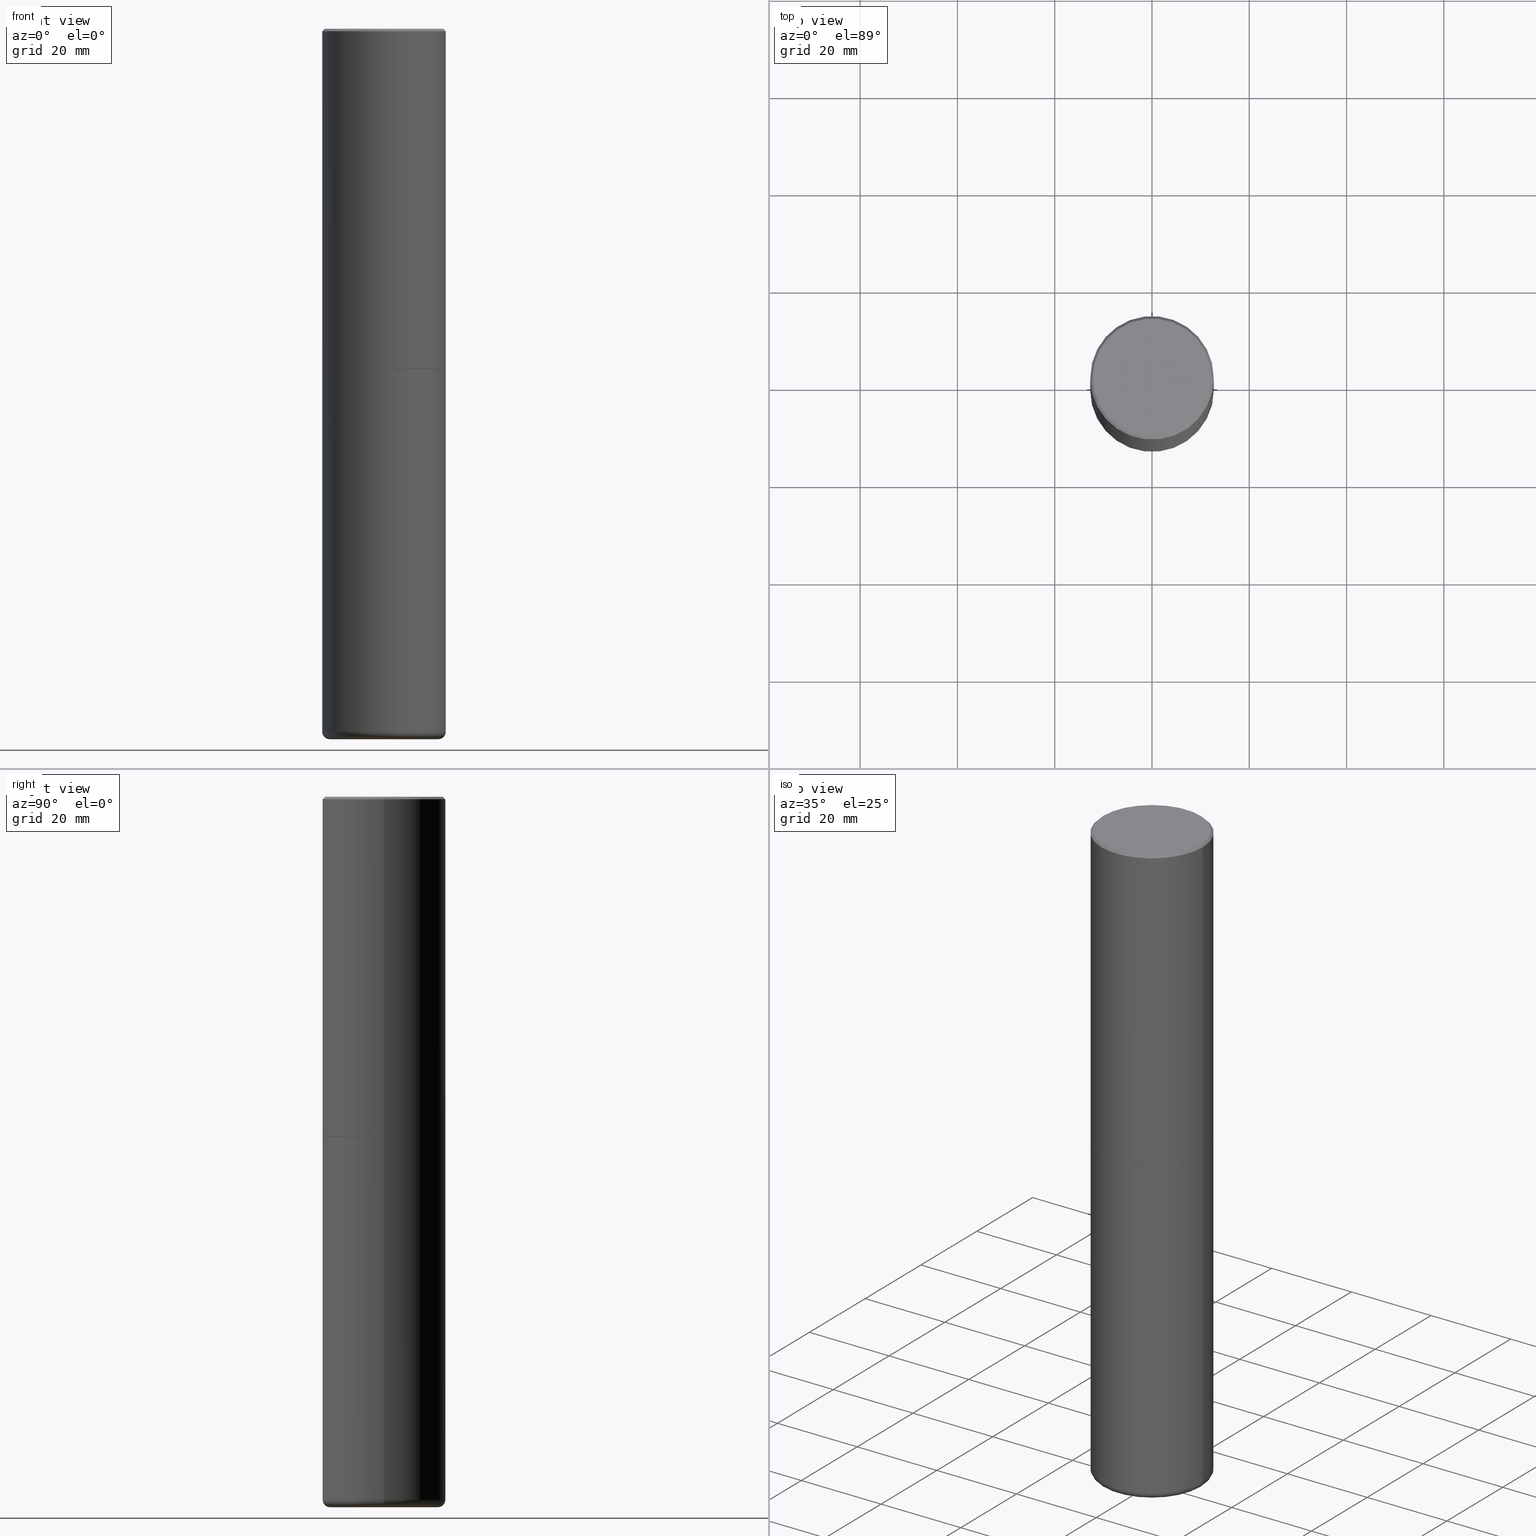
[diagram: canonical four-view strip — front | top / right | iso, engineering-drawing reading convention]
A machine part, canonical four-view strip (front | top / right | iso — engineering-drawing reading convention). The complete STEP part file that produces these views, byte-faithful:
ISO-10303-21;
HEADER;
FILE_DESCRIPTION (( 'STEP AP203' ),
    '1' );
FILE_NAME ('77486.STEP',
    '2024-05-02T19:48:48',
    ( '' ),
    ( '' ),
    'SwSTEP 2.0',
    'SolidWorks 2023',
    '' );
FILE_SCHEMA (( 'CONFIG_CONTROL_DESIGN' ));
ENDSEC;

DATA;
#1 = CC_DESIGN_APPROVAL ( #347, ( #179 ) ) ;
#2 = ORIENTED_EDGE ( 'NONE', *, *, #239, .F. ) ;
#3 = EDGE_CURVE ( 'NONE', #213, #237, #161, .T. ) ;
#4 = CARTESIAN_POINT ( 'NONE',  ( 0.4989999999999999991, -1.308607205798409720E-14, -2.749999999999999556 ) ) ;
#5 = APPROVAL_ROLE ( '' ) ;
#6 = LINE ( 'NONE', #322, #305 ) ;
#7 = ORIENTED_EDGE ( 'NONE', *, *, #52, .T. ) ;
#8 = AXIS2_PLACEMENT_3D ( 'NONE', #28, #222, #153 ) ;
#9 = SECURITY_CLASSIFICATION ( '', '', #110 ) ;
#10 = LENGTH_MEASURE_WITH_UNIT ( LENGTH_MEASURE( 0.02539999999999999897 ), #80 );
#11 = EDGE_LOOP ( 'NONE', ( #374, #167, #74, #292 ) ) ;
#12 = PERSON_AND_ORGANIZATION ( #44, #391 ) ;
#13 = FACE_OUTER_BOUND ( 'NONE', #136, .T. ) ;
#14 = ORIENTED_EDGE ( 'NONE', *, *, #195, .F. ) ;
#15 = ADVANCED_FACE ( 'NONE', ( #148 ), #366, .T. ) ;
#16 = DIRECTION ( 'NONE',  ( 2.445468806185136597E-29, -3.491481338843145583E-15, -1.000000000000000000 ) ) ;
#17 = AXIS2_PLACEMENT_3D ( 'NONE', #340, #346, #277 ) ;
#18 = EDGE_LOOP ( 'NONE', ( #320, #403 ) ) ;
#19 = LOCAL_TIME ( 15, 48, 48.00000000000000000, #105 ) ;
#20 = MANIFOLD_SOLID_BREP ( 'Body-Move/Copy2[1]', #45 ) ;
#21 = MANIFOLD_SOLID_BREP ( 'Body-Move/Copy2[2]', #280 ) ;
#22 = EDGE_CURVE ( 'NONE', #87, #220, #389, .T. ) ;
#23 = DIRECTION ( 'NONE',  ( 1.000000000000000000, -6.982962677686266711E-15, 4.874852205035275907E-29 ) ) ;
#24 = CARTESIAN_POINT ( 'NONE',  ( 0.5000000000000003331, -1.308956353932294179E-14, -2.748999999999999666 ) ) ;
#25 = ORIENTED_EDGE ( 'NONE', *, *, #375, .F. ) ;
#26 = CIRCLE ( 'NONE', #287, 0.5000000000000000000 ) ;
#27 =( GEOMETRIC_REPRESENTATION_CONTEXT ( 3 ) GLOBAL_UNCERTAINTY_ASSIGNED_CONTEXT ( ( #308 ) ) GLOBAL_UNIT_ASSIGNED_CONTEXT ( ( #236, #352, #160 ) ) REPRESENTATION_CONTEXT ( 'NONE', 'WORKASPACE' ) );
#28 = CARTESIAN_POINT ( 'NONE',  ( 6.725039217009123399E-29, -9.601573681818648281E-15, -2.749999999999999556 ) ) ;
#29 = LINE ( 'NONE', #154, #212 ) ;
#30 = DIRECTION ( 'NONE',  ( -0.7071067811867406405, 7.493145998871051513E-15, 0.7071067811863543939 ) ) ;
#31 = AXIS2_PLACEMENT_3D ( 'NONE', #127, #185, #317 ) ;
#32 = CIRCLE ( 'NONE', #381, 0.5000000000000000000 ) ;
#33 = FACE_OUTER_BOUND ( 'NONE', #384, .T. ) ;
#34 = CARTESIAN_POINT ( 'NONE',  ( 0.4800000000000000933, -3.396558832296482493E-15, -1.067128122524866809E-16 ) ) ;
#35 = EDGE_CURVE ( 'NONE', #130, #263, #370, .T. ) ;
#36 = CARTESIAN_POINT ( 'NONE',  ( 1.406144563556453767E-28, -2.007601769834809252E-14, -5.750000000000000888 ) ) ;
#37 = PRODUCT_RELATED_PRODUCT_CATEGORY ( 'detail', '', ( #354 ) ) ;
#38 = VECTOR ( 'NONE', #187, 39.37007874015748143 ) ;
#39 = ORIENTED_EDGE ( 'NONE', *, *, #271, .F. ) ;
#40 = PERSON_AND_ORGANIZATION ( #44, #391 ) ;
#41 = DIRECTION ( 'NONE',  ( -2.445468806185136597E-29, 3.491481338843145583E-15, 1.000000000000000000 ) ) ;
#42 = EDGE_LOOP ( 'NONE', ( #227, #368 ) ) ;
#43 = DIRECTION ( 'NONE',  ( 1.000000000000000000, -6.982962677686262766E-15, 0.000000000000000000 ) ) ;
#44 = PERSON ( 'UNSPECIFIED', 'UNSPECIFIED', 'UNSPECIFIED', ('UNSPECIFIED'), ('UNSPECIFIED'), ('UNSPECIFIED') ) ;
#45 = CLOSED_SHELL ( 'NONE', ( #84, #94, #159, #402, #417, #15 ) ) ;
#46 = DIRECTION ( 'NONE',  ( -2.445468806185136597E-29, 3.491481338843145583E-15, 1.000000000000000000 ) ) ;
#47 = CC_DESIGN_PERSON_AND_ORGANIZATION_ASSIGNMENT ( #202, #100, ( #179 ) ) ;
#48 = ORIENTED_EDGE ( 'NONE', *, *, #404, .T. ) ;
#49 = DIRECTION ( 'NONE',  ( 0.000000000000000000, 0.000000000000000000, 1.000000000000000000 ) ) ;
#50 = VERTEX_POINT ( 'NONE', #57 ) ;
#51 = FACE_OUTER_BOUND ( 'NONE', #77, .T. ) ;
#52 = EDGE_CURVE ( 'NONE', #130, #86, #400, .T. ) ;
#53 = CIRCLE ( 'NONE', #178, 0.4999999999999999445 ) ;
#54 = DIRECTION ( 'NONE',  ( -2.445468806185136597E-29, 3.491481338843145583E-15, 1.000000000000000000 ) ) ;
#55 = APPROVAL_PERSON_ORGANIZATION ( #40, #144, #388 ) ;
#56 = ORIENTED_EDGE ( 'NONE', *, *, #375, .T. ) ;
#57 = CARTESIAN_POINT ( 'NONE',  ( -0.4989999999999999991, -6.050666976027525169E-15, -2.749999999999999556 ) ) ;
#58 = ORIENTED_EDGE ( 'NONE', *, *, #363, .F. ) ;
#59 = APPROVAL_PERSON_ORGANIZATION ( #75, #119, #139 ) ;
#60 = DIRECTION ( 'NONE',  ( 1.000000000000000000, -6.982962677686280121E-15, 0.000000000000000000 ) ) ;
#61 = FACE_OUTER_BOUND ( 'NONE', #304, .T. ) ;
#62 = EDGE_CURVE ( 'NONE', #116, #50, #328, .T. ) ;
#63 = DIMENSIONAL_EXPONENTS ( 1.000000000000000000, 0.000000000000000000, 0.000000000000000000, 0.000000000000000000, 0.000000000000000000, 0.000000000000000000, 0.000000000000000000 ) ;
#64 = CARTESIAN_POINT ( 'NONE',  ( 1.391471750719342616E-28, -1.986652881801749632E-14, -5.689999999999999503 ) ) ;
#65 = AXIS2_PLACEMENT_3D ( 'NONE', #247, #269, #215 ) ;
#66 = CARTESIAN_POINT ( 'NONE',  ( 0.4400000000000000022, -2.293903239619945620E-14, -5.689999999999999503 ) ) ;
#67 = CARTESIAN_POINT ( 'NONE',  ( 6.725039217009123399E-29, -9.601573681818648281E-15, -2.749999999999999556 ) ) ;
#68 = ADVANCED_FACE ( 'NONE', ( #181 ), #128, .T. ) ;
#69 = CALENDAR_DATE ( 2024, 2, 5 ) ;
#70 = DIRECTION ( 'NONE',  ( -2.445468806185136597E-29, 3.491481338843145583E-15, 1.000000000000000000 ) ) ;
#71 = EDGE_LOOP ( 'NONE', ( #102, #7, #258, #25 ) ) ;
#72 = AXIS2_PLACEMENT_3D ( 'NONE', #120, #149, #245 ) ;
#73 = CYLINDRICAL_SURFACE ( 'NONE', #275, 0.5000000000000001110 ) ;
#74 = ORIENTED_EDGE ( 'NONE', *, *, #214, .T. ) ;
#75 = PERSON_AND_ORGANIZATION ( #44, #391 ) ;
#76 = CYLINDRICAL_SURFACE ( 'NONE', #319, 0.5000000000000000000 ) ;
#77 = EDGE_LOOP ( 'NONE', ( #208, #107, #14, #241 ) ) ;
#78 = CC_DESIGN_DATE_AND_TIME_ASSIGNMENT ( #290, #385, ( #9 ) ) ;
#79 = PERSON_AND_ORGANIZATION ( #44, #391 ) ;
#80 =( LENGTH_UNIT ( ) NAMED_UNIT ( * ) SI_UNIT ( $, .METRE. ) );
#81 = EDGE_LOOP ( 'NONE', ( #201, #175, #298, #406 ) ) ;
#82 = EDGE_CURVE ( 'NONE', #83, #263, #218, .T. ) ;
#83 = VERTEX_POINT ( 'NONE', #307 ) ;
#84 = ADVANCED_FACE ( 'NONE', ( #401 ), #306, .T. ) ;
#85 = DIRECTION ( 'NONE',  ( -2.445468806185136597E-29, 3.491481338843145583E-15, 1.000000000000000000 ) ) ;
#86 = VERTEX_POINT ( 'NONE', #24 ) ;
#87 = VERTEX_POINT ( 'NONE', #217 ) ;
#88 = DIRECTION ( 'NONE',  ( -2.445468806185136597E-29, 3.491481338843145583E-15, 1.000000000000000000 ) ) ;
#89 = ADVANCED_FACE ( 'NONE', ( #338 ), #146, .F. ) ;
#90 = CARTESIAN_POINT ( 'NONE',  ( 6.725039217009123399E-29, -9.601573681818648281E-15, -2.749999999999999556 ) ) ;
#91 = DIRECTION ( 'NONE',  ( -1.000000000000000000, 7.105427357601001859E-15, 0.000000000000000000 ) ) ;
#92 = VECTOR ( 'NONE', #125, 39.37007874015748143 ) ;
#93 = LINE ( 'NONE', #188, #243 ) ;
#94 = ADVANCED_FACE ( 'NONE', ( #51 ), #351, .T. ) ;
#95 = DIRECTION ( 'NONE',  ( 1.000000000000000000, -6.982962677686266711E-15, 0.000000000000000000 ) ) ;
#96 = FACE_OUTER_BOUND ( 'NONE', #81, .T. ) ;
#97 = CIRCLE ( 'NONE', #205, 0.4400000000000000022 ) ;
#98 = DIRECTION ( 'NONE',  ( 2.438088387897960049E-29, -3.491481338843145188E-15, -1.000000000000000000 ) ) ;
#99 = VERTEX_POINT ( 'NONE', #224 ) ;
#100 = PERSON_AND_ORGANIZATION_ROLE ( 'design_supplier' ) ;
#101 = DIRECTION ( 'NONE',  ( 1.000000000000000000, -6.982962677686264344E-15, 4.883557194083111780E-29 ) ) ;
#102 = ORIENTED_EDGE ( 'NONE', *, *, #35, .F. ) ;
#103 = AXIS2_PLACEMENT_3D ( 'NONE', #90, #54, #336 ) ;
#104 = CC_DESIGN_SECURITY_CLASSIFICATION ( #9, ( #179 ) ) ;
#105 = COORDINATED_UNIVERSAL_TIME_OFFSET ( 5, 0, .BEHIND. ) ;
#106 = CARTESIAN_POINT ( 'NONE',  ( 0.000000000000000000, 0.000000000000000000, 0.000000000000000000 ) ) ;
#107 = ORIENTED_EDGE ( 'NONE', *, *, #210, .T. ) ;
#108 = DIRECTION ( 'NONE',  ( 1.000000000000000000, -6.982962677686266711E-15, 4.876176775795935793E-29 ) ) ;
#109 = VERTEX_POINT ( 'NONE', #382 ) ;
#110 = SECURITY_CLASSIFICATION_LEVEL ( 'unclassified' ) ;
#111 = ORIENTED_EDGE ( 'NONE', *, *, #35, .T. ) ;
#112 = DATE_AND_TIME ( #324, #124 ) ;
#113 = ADVANCED_FACE ( 'NONE', ( #344 ), #348, .F. ) ;
#114 = CARTESIAN_POINT ( 'NONE',  ( 3.351822085289408337E-15, 0.4800000000000000933, -1.729267448770965221E-15 ) ) ;
#115 = EDGE_LOOP ( 'NONE', ( #143, #405, #367, #141 ) ) ;
#116 = VERTEX_POINT ( 'NONE', #158 ) ;
#117 = CONICAL_SURFACE ( 'NONE', #8, 0.4989999999999999991, 0.7853981633977213939 ) ;
#118 = DIRECTION ( 'NONE',  ( 2.438088387897960049E-29, -3.491481338843145188E-15, -1.000000000000000000 ) ) ;
#119 = APPROVAL ( #145, 'UNSPECIFIED' ) ;
#120 = CARTESIAN_POINT ( 'NONE',  ( 1.391471750719342616E-28, -1.986652881801749632E-14, -5.689999999999999503 ) ) ;
#121 = DIRECTION ( 'NONE',  ( -2.445468806185136597E-29, 3.491481338843145583E-15, 1.000000000000000000 ) ) ;
#122 = DIRECTION ( 'NONE',  ( -2.445468806185136597E-29, 3.491481338843145583E-15, 1.000000000000000000 ) ) ;
#123 = CIRCLE ( 'NONE', #137, 0.4800000000000000933 ) ;
#124 = LOCAL_TIME ( 15, 48, 48.00000000000000000, #399 ) ;
#125 = DIRECTION ( 'NONE',  ( 0.7071067811865461294, -7.319954787623251312E-15, -0.7071067811865489050 ) ) ;
#126 = DIRECTION ( 'NONE',  ( -2.445468806185136597E-29, 3.491481338843145583E-15, 1.000000000000000000 ) ) ;
#127 = CARTESIAN_POINT ( 'NONE',  ( 6.725039217009123399E-29, -9.601573681818648281E-15, -2.749999999999999556 ) ) ;
#128 = CONICAL_SURFACE ( 'NONE', #407, 0.5000000000000000000, 0.7853981633974463916 ) ;
#129 = DIRECTION ( 'NONE',  ( -2.445468806185136597E-29, 3.491481338843145583E-15, 1.000000000000000000 ) ) ;
#130 = VERTEX_POINT ( 'NONE', #316 ) ;
#131 = EDGE_CURVE ( 'NONE', #87, #198, #256, .T. ) ;
#132 = DIRECTION ( 'NONE',  ( -2.445468806185136597E-29, 3.491481338843145583E-15, 1.000000000000000000 ) ) ;
#133 = PERSON_AND_ORGANIZATION_ROLE ( 'creator' ) ;
#134 = DIRECTION ( 'NONE',  ( -2.445468806185136597E-29, 3.491481338843145583E-15, 1.000000000000000000 ) ) ;
#135 = ADVANCED_FACE ( 'NONE', ( #33 ), #170, .T. ) ;
#136 = EDGE_LOOP ( 'NONE', ( #334, #234, #332, #39 ) ) ;
#137 = AXIS2_PLACEMENT_3D ( 'NONE', #288, #70, #397 ) ;
#138 = CC_DESIGN_APPROVAL ( #119, ( #387 ) ) ;
#139 = APPROVAL_ROLE ( '' ) ;
#140 = DIRECTION ( 'NONE',  ( 1.000000000000000000, -6.982962677686265922E-15, 0.000000000000000000 ) ) ;
#141 = ORIENTED_EDGE ( 'NONE', *, *, #286, .F. ) ;
#142 = CARTESIAN_POINT ( 'NONE',  ( 1.391471750719342616E-28, -1.986652881801749632E-14, -5.689999999999999503 ) ) ;
#143 = ORIENTED_EDGE ( 'NONE', *, *, #303, .F. ) ;
#144 = APPROVAL ( #165, 'UNSPECIFIED' ) ;
#145 = APPROVAL_STATUS ( 'not_yet_approved' ) ;
#146 = PLANE ( 'NONE',  #364 ) ;
#147 = AXIS2_PLACEMENT_3D ( 'NONE', #142, #132, #101 ) ;
#148 = FACE_OUTER_BOUND ( 'NONE', #42, .T. ) ;
#149 = DIRECTION ( 'NONE',  ( -2.445468806185136597E-29, 3.491481338843145583E-15, 1.000000000000000000 ) ) ;
#150 = CC_DESIGN_PERSON_AND_ORGANIZATION_ASSIGNMENT ( #79, #362, ( #179 ) ) ;
#151 = CARTESIAN_POINT ( 'NONE',  ( 4.089694968291764333E-29, -3.435613221068401065E-14, -5.750000000000000888 ) ) ;
#152 = DIRECTION ( 'NONE',  ( -2.445468806185136597E-29, 3.491481338843145583E-15, 1.000000000000000000 ) ) ;
#153 = DIRECTION ( 'NONE',  ( 1.000000000000000000, -6.982962677686269077E-15, 0.000000000000000000 ) ) ;
#154 = CARTESIAN_POINT ( 'NONE',  ( 0.5000000000000000000, -3.491481338843133355E-15, 2.438088387897967896E-29 ) ) ;
#155 = CARTESIAN_POINT ( 'NONE',  ( -0.5000000000000000000, 3.421651712066270057E-15, -0.02000000000000010797 ) ) ;
#156 = CONICAL_SURFACE ( 'NONE', #17, 0.4989999999999999991, 0.7853981633977213939 ) ;
#157 = FACE_OUTER_BOUND ( 'NONE', #18, .T. ) ;
#158 = CARTESIAN_POINT ( 'NONE',  ( 0.4989999999999999991, -1.308607205798409720E-14, -2.749999999999999556 ) ) ;
#159 = ADVANCED_FACE ( 'NONE', ( #157 ), #285, .F. ) ;
#160 =( NAMED_UNIT ( * ) SI_UNIT ( $, .STERADIAN. ) SOLID_ANGLE_UNIT ( ) );
#161 = CIRCLE ( 'NONE', #377, 0.4800000000000000933 ) ;
#162 = TOROIDAL_SURFACE ( 'NONE', #147, 0.4400000000000000022, 0.06000000000000045575 ) ;
#163 = ORIENTED_EDGE ( 'NONE', *, *, #254, .F. ) ;
#164 = EDGE_CURVE ( 'NONE', #350, #99, #270, .T. ) ;
#165 = APPROVAL_STATUS ( 'not_yet_approved' ) ;
#166 = DIRECTION ( 'NONE',  ( 1.000000000000000000, -6.982962677686266711E-15, 0.000000000000000000 ) ) ;
#167 = ORIENTED_EDGE ( 'NONE', *, *, #341, .T. ) ;
#168 = DIRECTION ( 'NONE',  ( -2.445468806185136597E-29, 3.491481338843145583E-15, 1.000000000000000000 ) ) ;
#169 = EDGE_LOOP ( 'NONE', ( #48, #111, #211, #361 ) ) ;
#170 = CONICAL_SURFACE ( 'NONE', #318, 0.5000000000000000000, 0.7853981633974463916 ) ;
#171 = PERSON_AND_ORGANIZATION ( #44, #391 ) ;
#172 = CARTESIAN_POINT ( 'NONE',  ( 0.000000000000000000, 0.000000000000000000, 0.000000000000000000 ) ) ;
#173 = PERSON_AND_ORGANIZATION_ROLE ( 'classification_officer' ) ;
#174 = CARTESIAN_POINT ( 'NONE',  ( 0.000000000000000000, 0.000000000000000000, 0.000000000000000000 ) ) ;
#175 = ORIENTED_EDGE ( 'NONE', *, *, #254, .T. ) ;
#176 = SHAPE_DEFINITION_REPRESENTATION ( #343, #360 ) ;
#177 = ADVANCED_FACE ( 'NONE', ( #96 ), #117, .T. ) ;
#178 = AXIS2_PLACEMENT_3D ( 'NONE', #410, #121, #253 ) ;
#179 = PRODUCT_DEFINITION_FORMATION_WITH_SPECIFIED_SOURCE ( 'ANY', '', #354, .NOT_KNOWN. ) ;
#180 = CARTESIAN_POINT ( 'NONE',  ( 4.890937612370299433E-31, -6.982962677686328587E-17, -0.02000000000000010797 ) ) ;
#181 = FACE_OUTER_BOUND ( 'NONE', #115, .T. ) ;
#182 = DIRECTION ( 'NONE',  ( -2.445468806185136877E-29, 3.491481338843145188E-15, 1.000000000000000000 ) ) ;
#183 = AXIS2_PLACEMENT_3D ( 'NONE', #151, #118, #408 ) ;
#184 = APPROVAL_PERSON_ORGANIZATION ( #12, #347, #5 ) ;
#185 = DIRECTION ( 'NONE',  ( -2.438088387897960049E-29, 3.491481338843145188E-15, 1.000000000000000000 ) ) ;
#186 = APPLICATION_CONTEXT ( 'configuration controlled 3d designs of mechanical parts and assemblies' ) ;
#187 = DIRECTION ( 'NONE',  ( -2.445468806185136877E-29, 3.491481338843145188E-15, 1.000000000000000000 ) ) ;
#188 = CARTESIAN_POINT ( 'NONE',  ( -0.4989999999999999991, -6.055965430375748360E-15, -2.749999999999999556 ) ) ;
#189 = AXIS2_PLACEMENT_3D ( 'NONE', #64, #226, #190 ) ;
#190 = DIRECTION ( 'NONE',  ( 1.000000000000000000, -6.982962677686264344E-15, 4.883557194083111780E-29 ) ) ;
#191 = ADVANCED_FACE ( 'NONE', ( #61 ), #156, .T. ) ;
#192 = DIRECTION ( 'NONE',  ( -6.982962677686266711E-15, -1.000000000000000000, 3.491481338843145583E-15 ) ) ;
#193 = CARTESIAN_POINT ( 'NONE',  ( 0.4400000000000000022, -2.314852127653004609E-14, -5.750000000000000888 ) ) ;
#194 = AXIS2_PLACEMENT_3D ( 'NONE', #415, #126, #279 ) ;
#195 = EDGE_CURVE ( 'NONE', #220, #87, #53, .T. ) ;
#196 = PERSON_AND_ORGANIZATION_ROLE ( 'design_owner' ) ;
#197 = DIRECTION ( 'NONE',  ( 1.000000000000000000, -6.982962677686266711E-15, 0.000000000000000000 ) ) ;
#198 = VERTEX_POINT ( 'NONE', #248 ) ;
#199 = CALENDAR_DATE ( 2024, 2, 5 ) ;
#200 = DIRECTION ( 'NONE',  ( -0.7071067811865461294, 2.468850131082242072E-15, -0.7071067811865489050 ) ) ;
#201 = ORIENTED_EDGE ( 'NONE', *, *, #62, .T. ) ;
#202 = PERSON_AND_ORGANIZATION ( #44, #391 ) ;
#203 = DIRECTION ( 'NONE',  ( -2.445468806185136877E-29, 3.491481338843145188E-15, 1.000000000000000000 ) ) ;
#204 = ORIENTED_EDGE ( 'NONE', *, *, #286, .T. ) ;
#205 = AXIS2_PLACEMENT_3D ( 'NONE', #36, #393, #43 ) ;
#206 = COORDINATED_UNIVERSAL_TIME_OFFSET ( 5, 0, .BEHIND. ) ;
#207 = DIRECTION ( 'NONE',  ( 1.000000000000000000, 0.000000000000000000, 0.000000000000000000 ) ) ;
#208 = ORIENTED_EDGE ( 'NONE', *, *, #164, .T. ) ;
#209 = DIRECTION ( 'NONE',  ( 2.438088387897960049E-29, -3.491481338843145188E-15, -1.000000000000000000 ) ) ;
#210 = EDGE_CURVE ( 'NONE', #99, #87, #345, .T. ) ;
#211 = ORIENTED_EDGE ( 'NONE', *, *, #82, .F. ) ;
#212 = VECTOR ( 'NONE', #411, 39.37007874015748143 ) ;
#213 = VERTEX_POINT ( 'NONE', #219 ) ;
#214 = EDGE_CURVE ( 'NONE', #350, #220, #371, .T. ) ;
#215 = DIRECTION ( 'NONE',  ( 1.000000000000000000, -6.982962677686265922E-15, 0.000000000000000000 ) ) ;
#216 = CC_DESIGN_PERSON_AND_ORGANIZATION_ASSIGNMENT ( #326, #173, ( #9 ) ) ;
#217 = CARTESIAN_POINT ( 'NONE',  ( -0.5000000000000002220, -1.631381513921699223E-14, -5.689999999999999503 ) ) ;
#218 = CIRCLE ( 'NONE', #223, 0.5000000000000000000 ) ;
#219 = CARTESIAN_POINT ( 'NONE',  ( -0.4800000000000000933, 3.386736898677839197E-15, -1.067128122525338523E-16 ) ) ;
#220 = VERTEX_POINT ( 'NONE', #313 ) ;
#221 = CARTESIAN_POINT ( 'NONE',  ( 4.890937612370299433E-31, -6.982962677686328587E-17, -0.02000000000000010797 ) ) ;
#222 = DIRECTION ( 'NONE',  ( -2.445468806185136597E-29, 3.491481338843145583E-15, 1.000000000000000000 ) ) ;
#223 = AXIS2_PLACEMENT_3D ( 'NONE', #180, #85, #272 ) ;
#224 = CARTESIAN_POINT ( 'NONE',  ( -0.4400000000000000022, -1.663172240011032058E-14, -5.750000000000000888 ) ) ;
#225 = EDGE_CURVE ( 'NONE', #220, #109, #29, .T. ) ;
#226 = DIRECTION ( 'NONE',  ( -2.445468806185136597E-29, 3.491481338843145583E-15, 1.000000000000000000 ) ) ;
#227 = ORIENTED_EDGE ( 'NONE', *, *, #164, .F. ) ;
#228 = DIRECTION ( 'NONE',  ( -2.445468806185136597E-29, 3.491481338843145583E-15, 1.000000000000000000 ) ) ;
#229 = AXIS2_PLACEMENT_3D ( 'NONE', #314, #122, #251 ) ;
#230 = CALENDAR_DATE ( 2024, 2, 5 ) ;
#231 = FACE_OUTER_BOUND ( 'NONE', #71, .T. ) ;
#232 = DATE_TIME_ROLE ( 'creation_date' ) ;
#233 = CARTESIAN_POINT ( 'NONE',  ( 0.000000000000000000, 0.000000000000000000, 0.000000000000000000 ) ) ;
#234 = ORIENTED_EDGE ( 'NONE', *, *, #22, .T. ) ;
#235 = CALENDAR_DATE ( 2024, 2, 5 ) ;
#236 =( CONVERSION_BASED_UNIT ( 'INCH', #10 ) LENGTH_UNIT ( ) NAMED_UNIT ( #63 ) );
#237 = VERTEX_POINT ( 'NONE', #34 ) ;
#238 = AXIS2_PLACEMENT_3D ( 'NONE', #66, #192, #60 ) ;
#239 = EDGE_CURVE ( 'NONE', #50, #116, #412, .T. ) ;
#240 = DIRECTION ( 'NONE',  ( -1.000000000000000000, 6.982962677686266711E-15, 0.000000000000000000 ) ) ;
#241 = ORIENTED_EDGE ( 'NONE', *, *, #214, .F. ) ;
#242 = CARTESIAN_POINT ( 'NONE',  ( -0.5000000000000001110, 3.552713678800501718E-15, -2.459467545127453732E-29 ) ) ;
#243 = VECTOR ( 'NONE', #30, 39.37007874015748143 ) ;
#244 = LOCAL_TIME ( 15, 48, 48.00000000000000000, #268 ) ;
#245 = DIRECTION ( 'NONE',  ( 1.000000000000000000, -6.982962677686263555E-15, 0.000000000000000000 ) ) ;
#246 = DATE_AND_TIME ( #199, #19 ) ;
#247 = CARTESIAN_POINT ( 'NONE',  ( 6.722593748202938917E-29, -9.598082200479805274E-15, -2.748999999999999666 ) ) ;
#248 = CARTESIAN_POINT ( 'NONE',  ( -0.5000000000000000000, -1.118133757111757137E-14, -2.749999999999999556 ) ) ;
#249 = VECTOR ( 'NONE', #349, 39.37007874015748143 ) ;
#250 = LOCAL_TIME ( 15, 48, 48.00000000000000000, #206 ) ;
#251 = DIRECTION ( 'NONE',  ( 1.000000000000000000, -6.982962677686269077E-15, 0.000000000000000000 ) ) ;
#252 = CARTESIAN_POINT ( 'NONE',  ( 6.725039217009123399E-29, -9.601573681818648281E-15, -2.749999999999999556 ) ) ;
#253 = DIRECTION ( 'NONE',  ( 1.000000000000000000, -6.982962677686263555E-15, 0.000000000000000000 ) ) ;
#254 = EDGE_CURVE ( 'NONE', #50, #130, #93, .T. ) ;
#255 = CIRCLE ( 'NONE', #315, 0.5000000000000000000 ) ;
#256 = LINE ( 'NONE', #416, #38 ) ;
#257 = AXIS2_PLACEMENT_3D ( 'NONE', #174, #49, #207 ) ;
#258 = ORIENTED_EDGE ( 'NONE', *, *, #278, .T. ) ;
#259 = APPROVAL_STATUS ( 'not_yet_approved' ) ;
#260 = ORIENTED_EDGE ( 'NONE', *, *, #62, .F. ) ;
#261 = LOCAL_TIME ( 15, 48, 48.00000000000000000, #396 ) ;
#262 = CYLINDRICAL_SURFACE ( 'NONE', #353, 0.5000000000000001110 ) ;
#263 = VERTEX_POINT ( 'NONE', #155 ) ;
#264 = EDGE_CURVE ( 'NONE', #237, #83, #282, .T. ) ;
#265 = APPROVAL_DATE_TIME ( #112, #119 ) ;
#266 = CARTESIAN_POINT ( 'NONE',  ( 0.5000000000000001110, -3.491481338843134539E-15, 2.438088387897968457E-29 ) ) ;
#267 = ORIENTED_EDGE ( 'NONE', *, *, #131, .T. ) ;
#268 = COORDINATED_UNIVERSAL_TIME_OFFSET ( 5, 0, .BEHIND. ) ;
#269 = DIRECTION ( 'NONE',  ( -2.445468806185136597E-29, 3.491481338843145583E-15, 1.000000000000000000 ) ) ;
#270 = CIRCLE ( 'NONE', #194, 0.4400000000000000022 ) ;
#271 = EDGE_CURVE ( 'NONE', #198, #109, #255, .T. ) ;
#272 = DIRECTION ( 'NONE',  ( 1.000000000000000000, -6.982962677686266711E-15, 0.000000000000000000 ) ) ;
#273 = CARTESIAN_POINT ( 'NONE',  ( 0.000000000000000000, 0.000000000000000000, 0.000000000000000000 ) ) ;
#274 = ORIENTED_EDGE ( 'NONE', *, *, #3, .F. ) ;
#275 = AXIS2_PLACEMENT_3D ( 'NONE', #233, #134, #359 ) ;
#276 = ORIENTED_EDGE ( 'NONE', *, *, #264, .F. ) ;
#277 = DIRECTION ( 'NONE',  ( 1.000000000000000000, -6.982962677686269077E-15, 0.000000000000000000 ) ) ;
#278 = EDGE_CURVE ( 'NONE', #86, #83, #356, .T. ) ;
#279 = DIRECTION ( 'NONE',  ( 1.000000000000000000, -6.982962677686262766E-15, 0.000000000000000000 ) ) ;
#280 = CLOSED_SHELL ( 'NONE', ( #177, #339, #68, #135, #373, #191, #113, #89 ) ) ;
#281 = CC_DESIGN_APPROVAL ( #144, ( #9 ) ) ;
#282 = LINE ( 'NONE', #414, #92 ) ;
#283 = CARTESIAN_POINT ( 'NONE',  ( 6.725039217009123399E-29, -9.601573681818648281E-15, -2.749999999999999556 ) ) ;
#284 = EDGE_CURVE ( 'NONE', #116, #86, #327, .T. ) ;
#285 = PLANE ( 'NONE',  #418 ) ;
#286 = EDGE_CURVE ( 'NONE', #213, #263, #6, .T. ) ;
#287 = AXIS2_PLACEMENT_3D ( 'NONE', #67, #46, #197 ) ;
#288 = CARTESIAN_POINT ( 'NONE',  ( 2.609628535838049452E-45, -3.725857925951117973E-31, -1.067128122525102851E-16 ) ) ;
#289 = CIRCLE ( 'NONE', #413, 0.5000000000000003331 ) ;
#290 = DATE_AND_TIME ( #69, #244 ) ;
#291 = APPLICATION_PROTOCOL_DEFINITION ( 'international standard', 'config_control_design', 1994, #186 ) ;
#292 = ORIENTED_EDGE ( 'NONE', *, *, #22, .F. ) ;
#293 = DATE_AND_TIME ( #230, #261 ) ;
#294 = CARTESIAN_POINT ( 'NONE',  ( 6.722593748202938917E-29, -9.598082200479805274E-15, -2.748999999999999666 ) ) ;
#295 = ORIENTED_EDGE ( 'NONE', *, *, #284, .T. ) ;
#296 = CC_DESIGN_DATE_AND_TIME_ASSIGNMENT ( #293, #232, ( #387 ) ) ;
#297 = VECTOR ( 'NONE', #203, 39.37007874015748143 ) ;
#298 = ORIENTED_EDGE ( 'NONE', *, *, #404, .F. ) ;
#299 = PERSON_AND_ORGANIZATION ( #44, #391 ) ;
#300 = CARTESIAN_POINT ( 'NONE',  ( 4.890937612370299433E-31, -6.982962677686328587E-17, -0.02000000000000010797 ) ) ;
#301 = ORIENTED_EDGE ( 'NONE', *, *, #52, .F. ) ;
#302 = CARTESIAN_POINT ( 'NONE',  ( 2.609628535838049452E-45, -3.725857925951117973E-31, -1.067128122525102851E-16 ) ) ;
#303 = EDGE_CURVE ( 'NONE', #237, #213, #123, .T. ) ;
#304 = EDGE_LOOP ( 'NONE', ( #163, #398, #295, #301 ) ) ;
#305 = VECTOR ( 'NONE', #200, 39.37007874015748143 ) ;
#306 = CYLINDRICAL_SURFACE ( 'NONE', #335, 0.5000000000000000000 ) ;
#307 = CARTESIAN_POINT ( 'NONE',  ( 0.5000000000000000000, -3.500078625662629079E-15, -0.02000000000000010797 ) ) ;
#308 = UNCERTAINTY_MEASURE_WITH_UNIT (LENGTH_MEASURE( 1.000000000000000082E-05 ), #236, 'distance_accuracy_value', 'NONE');
#309 = DIRECTION ( 'NONE',  ( 1.000000000000000000, -6.982962677686266711E-15, 4.876176775795935793E-29 ) ) ;
#310 = VECTOR ( 'NONE', #182, 39.37007874015748143 ) ;
#311 = APPROVAL_DATE_TIME ( #246, #144 ) ;
#312 = DIRECTION ( 'NONE',  ( -1.000000000000000000, 6.982962677686265922E-15, -4.876176775795935793E-29 ) ) ;
#313 = CARTESIAN_POINT ( 'NONE',  ( 0.5000000000000002220, -2.335801015686062967E-14, -5.689999999999999503 ) ) ;
#314 = CARTESIAN_POINT ( 'NONE',  ( 6.725039217009123399E-29, -9.601573681818648281E-15, -2.749999999999999556 ) ) ;
#315 = AXIS2_PLACEMENT_3D ( 'NONE', #252, #379, #95 ) ;
#316 = CARTESIAN_POINT ( 'NONE',  ( -0.5000000000000003331, -1.281242234827828821E-15, -2.748999999999999666 ) ) ;
#317 = DIRECTION ( 'NONE',  ( 1.000000000000000000, -6.982962677686265922E-15, 4.876176775795935793E-29 ) ) ;
#318 = AXIS2_PLACEMENT_3D ( 'NONE', #221, #378, #342 ) ;
#319 = AXIS2_PLACEMENT_3D ( 'NONE', #106, #129, #108 ) ;
#320 = ORIENTED_EDGE ( 'NONE', *, *, #363, .T. ) ;
#321 = APPROVAL_DATE_TIME ( #330, #347 ) ;
#322 = CARTESIAN_POINT ( 'NONE',  ( -0.5000000000000000000, 3.421651712066270057E-15, -0.02000000000000010797 ) ) ;
#323 = EDGE_LOOP ( 'NONE', ( #260, #2 ) ) ;
#324 = CALENDAR_DATE ( 2024, 2, 5 ) ;
#325 = FACE_OUTER_BOUND ( 'NONE', #169, .T. ) ;
#326 = PERSON_AND_ORGANIZATION ( #44, #391 ) ;
#327 = LINE ( 'NONE', #4, #249 ) ;
#328 = CIRCLE ( 'NONE', #103, 0.4989999999999999991 ) ;
#329 = ORIENTED_EDGE ( 'NONE', *, *, #3, .T. ) ;
#330 = DATE_AND_TIME ( #235, #250 ) ;
#331 = MECHANICAL_CONTEXT ( 'NONE', #186, 'mechanical' ) ;
#332 = ORIENTED_EDGE ( 'NONE', *, *, #225, .T. ) ;
#333 = DIRECTION ( 'NONE',  ( -1.000000000000000000, 6.982962677686265922E-15, -4.876176775795935793E-29 ) ) ;
#334 = ORIENTED_EDGE ( 'NONE', *, *, #131, .F. ) ;
#335 = AXIS2_PLACEMENT_3D ( 'NONE', #273, #88, #309 ) ;
#336 = DIRECTION ( 'NONE',  ( 1.000000000000000000, -6.982962677686269077E-15, 0.000000000000000000 ) ) ;
#337 = ORIENTED_EDGE ( 'NONE', *, *, #303, .T. ) ;
#338 = FACE_OUTER_BOUND ( 'NONE', #394, .T. ) ;
#339 = ADVANCED_FACE ( 'NONE', ( #325 ), #73, .T. ) ;
#340 = CARTESIAN_POINT ( 'NONE',  ( 6.725039217009123399E-29, -9.601573681818648281E-15, -2.749999999999999556 ) ) ;
#341 = EDGE_CURVE ( 'NONE', #99, #350, #97, .T. ) ;
#342 = DIRECTION ( 'NONE',  ( -1.000000000000000000, 6.982962677686266711E-15, 0.000000000000000000 ) ) ;
#343 = PRODUCT_DEFINITION_SHAPE ( 'NONE', 'NONE',  #387 ) ;
#344 = FACE_OUTER_BOUND ( 'NONE', #323, .T. ) ;
#345 = CIRCLE ( 'NONE', #390, 0.06000000000000045575 ) ;
#346 = DIRECTION ( 'NONE',  ( -2.445468806185136597E-29, 3.491481338843145583E-15, 1.000000000000000000 ) ) ;
#347 = APPROVAL ( #259, 'UNSPECIFIED' ) ;
#348 = PLANE ( 'NONE',  #31 ) ;
#349 = DIRECTION ( 'NONE',  ( 0.7071067811867406405, -2.468850131084279700E-15, 0.7071067811863543939 ) ) ;
#350 = VERTEX_POINT ( 'NONE', #193 ) ;
#351 = TOROIDAL_SURFACE ( 'NONE', #189, 0.4400000000000000022, 0.06000000000000045575 ) ;
#352 =( NAMED_UNIT ( * ) PLANE_ANGLE_UNIT ( ) SI_UNIT ( $, .RADIAN. ) );
#353 = AXIS2_PLACEMENT_3D ( 'NONE', #172, #41, #383 ) ;
#354 = PRODUCT ( '77486', '77486', '', ( #331 ) ) ;
#355 = CC_DESIGN_PERSON_AND_ORGANIZATION_ASSIGNMENT ( #299, #133, ( #387 ) ) ;
#356 = LINE ( 'NONE', #266, #297 ) ;
#357 = ORIENTED_EDGE ( 'NONE', *, *, #225, .F. ) ;
#358 = APPLICATION_PROTOCOL_DEFINITION ( 'international standard', 'config_control_design', 1994, #369 ) ;
#359 = DIRECTION ( 'NONE',  ( 1.000000000000000000, -6.982962677686267499E-15, 4.876176775795935793E-29 ) ) ;
#360 = ADVANCED_BREP_SHAPE_REPRESENTATION ( '77486', ( #20, #21, #257 ), #27 ) ;
#361 = ORIENTED_EDGE ( 'NONE', *, *, #278, .F. ) ;
#362 = PERSON_AND_ORGANIZATION_ROLE ( 'creator' ) ;
#363 = EDGE_CURVE ( 'NONE', #109, #198, #26, .T. ) ;
#364 = AXIS2_PLACEMENT_3D ( 'NONE', #114, #209, #333 ) ;
#365 = EDGE_LOOP ( 'NONE', ( #392, #267, #58, #357 ) ) ;
#366 = PLANE ( 'NONE',  #183 ) ;
#367 = ORIENTED_EDGE ( 'NONE', *, *, #82, .T. ) ;
#368 = ORIENTED_EDGE ( 'NONE', *, *, #341, .F. ) ;
#369 = APPLICATION_CONTEXT ( 'configuration controlled 3d designs of mechanical parts and assemblies' ) ;
#370 = LINE ( 'NONE', #242, #310 ) ;
#371 = CIRCLE ( 'NONE', #238, 0.06000000000000045575 ) ;
#372 = CARTESIAN_POINT ( 'NONE',  ( 4.890937612370299433E-31, -6.982962677686328587E-17, -0.02000000000000010797 ) ) ;
#373 = ADVANCED_FACE ( 'NONE', ( #231 ), #262, .T. ) ;
#374 = ORIENTED_EDGE ( 'NONE', *, *, #210, .F. ) ;
#375 = EDGE_CURVE ( 'NONE', #263, #83, #32, .T. ) ;
#376 = CARTESIAN_POINT ( 'NONE',  ( -0.4400000000000000022, -1.674014078067305588E-14, -5.689999999999999503 ) ) ;
#377 = AXIS2_PLACEMENT_3D ( 'NONE', #302, #152, #23 ) ;
#378 = DIRECTION ( 'NONE',  ( 2.445468806185136597E-29, -3.491481338843145583E-15, -1.000000000000000000 ) ) ;
#379 = DIRECTION ( 'NONE',  ( -2.445468806185136597E-29, 3.491481338843145583E-15, 1.000000000000000000 ) ) ;
#380 = DIRECTION ( 'NONE',  ( 7.105427357601001859E-15, 1.000000000000000000, -3.491481338843145583E-15 ) ) ;
#381 = AXIS2_PLACEMENT_3D ( 'NONE', #300, #228, #166 ) ;
#382 = CARTESIAN_POINT ( 'NONE',  ( 0.5000000000000000000, -1.309305502066178164E-14, -2.749999999999999556 ) ) ;
#383 = DIRECTION ( 'NONE',  ( 1.000000000000000000, -6.982962677686267499E-15, 4.876176775795935793E-29 ) ) ;
#384 = EDGE_LOOP ( 'NONE', ( #276, #274, #204, #56 ) ) ;
#385 = DATE_TIME_ROLE ( 'classification_date' ) ;
#386 = FACE_OUTER_BOUND ( 'NONE', #11, .T. ) ;
#387 = PRODUCT_DEFINITION ( 'UNKNOWN', '', #179, #395 ) ;
#388 = APPROVAL_ROLE ( '' ) ;
#389 = CIRCLE ( 'NONE', #72, 0.4999999999999999445 ) ;
#390 = AXIS2_PLACEMENT_3D ( 'NONE', #376, #380, #91 ) ;
#391 = ORGANIZATION ( 'UNSPECIFIED', 'UNSPECIFIED', '' ) ;
#392 = ORIENTED_EDGE ( 'NONE', *, *, #195, .T. ) ;
#393 = DIRECTION ( 'NONE',  ( -2.445468806185136597E-29, 3.491481338843145583E-15, 1.000000000000000000 ) ) ;
#394 = EDGE_LOOP ( 'NONE', ( #329, #337 ) ) ;
#395 = DESIGN_CONTEXT ( 'detailed design', #369, 'design' ) ;
#396 = COORDINATED_UNIVERSAL_TIME_OFFSET ( 5, 0, .BEHIND. ) ;
#397 = DIRECTION ( 'NONE',  ( 1.000000000000000000, -6.982962677686266711E-15, 4.874852205035275907E-29 ) ) ;
#398 = ORIENTED_EDGE ( 'NONE', *, *, #239, .T. ) ;
#399 = COORDINATED_UNIVERSAL_TIME_OFFSET ( 5, 0, .BEHIND. ) ;
#400 = CIRCLE ( 'NONE', #65, 0.5000000000000003331 ) ;
#401 = FACE_OUTER_BOUND ( 'NONE', #365, .T. ) ;
#402 = ADVANCED_FACE ( 'NONE', ( #13 ), #76, .T. ) ;
#403 = ORIENTED_EDGE ( 'NONE', *, *, #271, .T. ) ;
#404 = EDGE_CURVE ( 'NONE', #86, #130, #289, .T. ) ;
#405 = ORIENTED_EDGE ( 'NONE', *, *, #264, .T. ) ;
#406 = ORIENTED_EDGE ( 'NONE', *, *, #284, .F. ) ;
#407 = AXIS2_PLACEMENT_3D ( 'NONE', #372, #16, #240 ) ;
#408 = DIRECTION ( 'NONE',  ( -1.000000000000000000, 6.982962677686265922E-15, -4.876176775795935793E-29 ) ) ;
#409 = CC_DESIGN_PERSON_AND_ORGANIZATION_ASSIGNMENT ( #171, #196, ( #354 ) ) ;
#410 = CARTESIAN_POINT ( 'NONE',  ( 1.391471750719342616E-28, -1.986652881801749632E-14, -5.689999999999999503 ) ) ;
#411 = DIRECTION ( 'NONE',  ( -2.445468806185136877E-29, 3.491481338843145188E-15, 1.000000000000000000 ) ) ;
#412 = CIRCLE ( 'NONE', #229, 0.4989999999999999991 ) ;
#413 = AXIS2_PLACEMENT_3D ( 'NONE', #294, #168, #140 ) ;
#414 = CARTESIAN_POINT ( 'NONE',  ( 0.5000000000000000000, -3.500078625662629079E-15, -0.02000000000000010797 ) ) ;
#415 = CARTESIAN_POINT ( 'NONE',  ( 1.406144563556453767E-28, -2.007601769834809252E-14, -5.750000000000000888 ) ) ;
#416 = CARTESIAN_POINT ( 'NONE',  ( -0.5000000000000000000, 3.552713678800500929E-15, -2.459467545127452891E-29 ) ) ;
#417 = ADVANCED_FACE ( 'NONE', ( #386 ), #162, .T. ) ;
#418 = AXIS2_PLACEMENT_3D ( 'NONE', #283, #98, #312 ) ;
ENDSEC;
END-ISO-10303-21;
